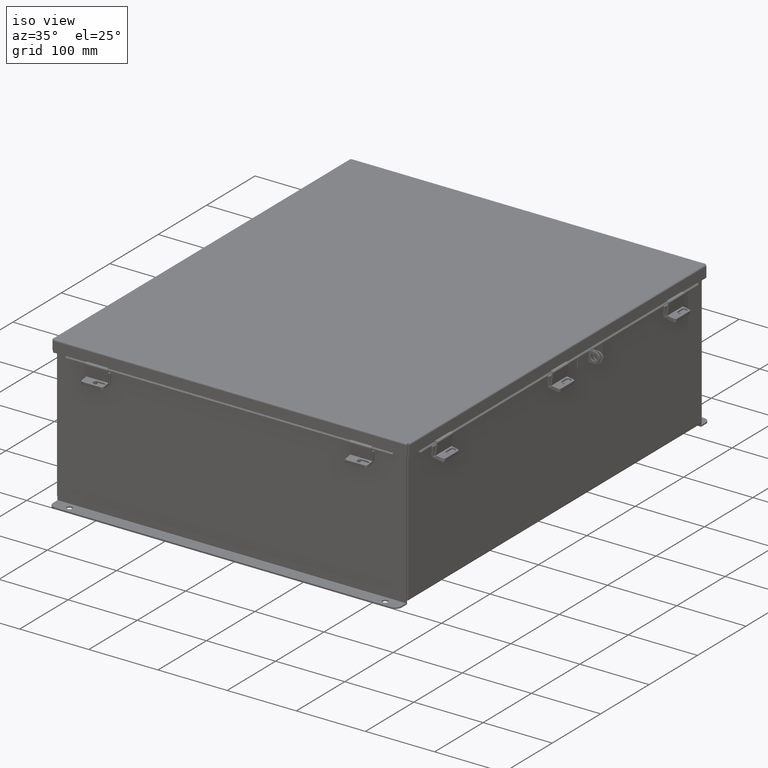
[diagram: clean part render]
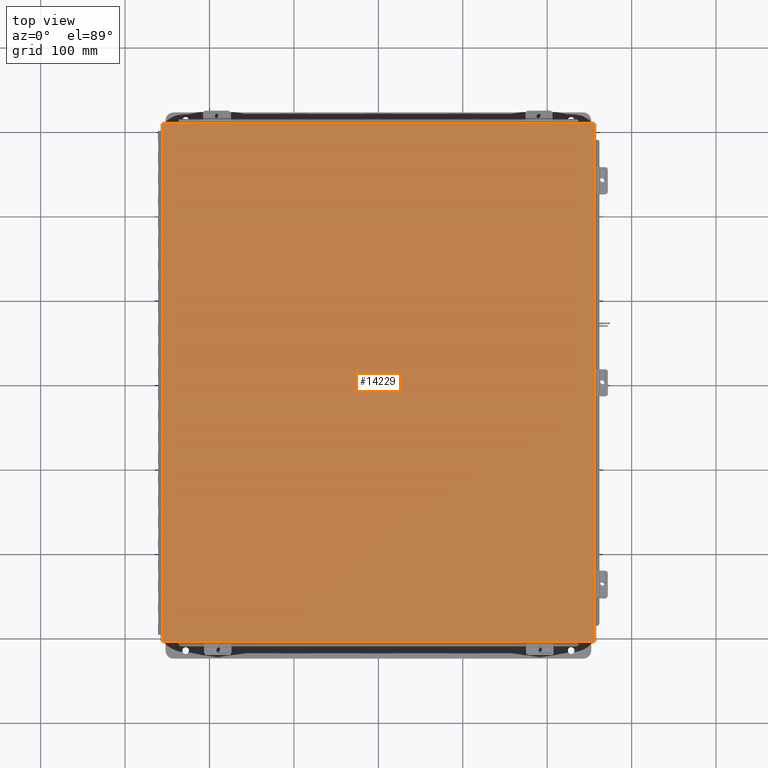
[diagram: tour spotlight — one face highlighted and labeled with its STEP entity id]
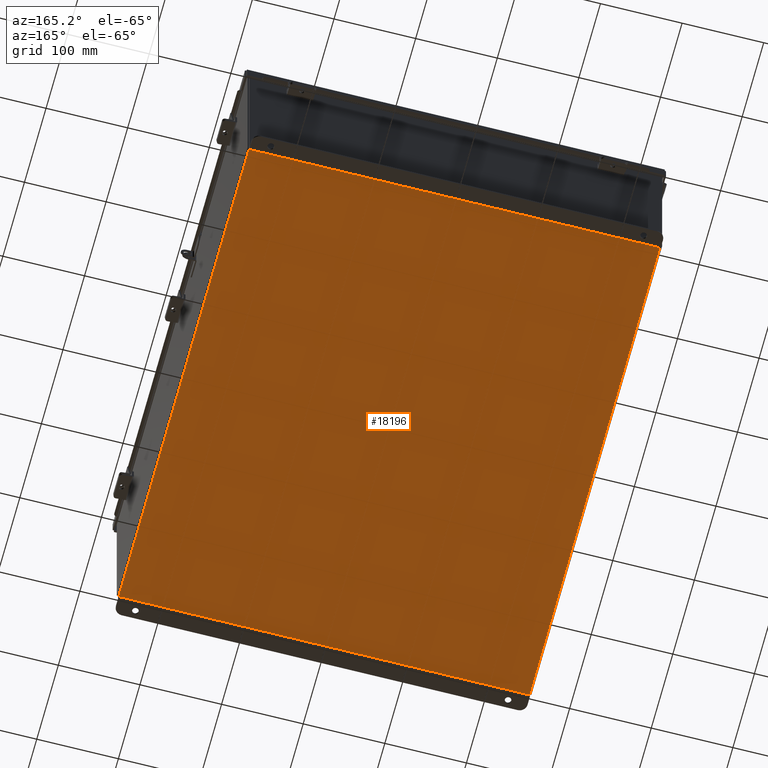
[diagram: tour spotlight — one face highlighted and labeled with its STEP entity id]
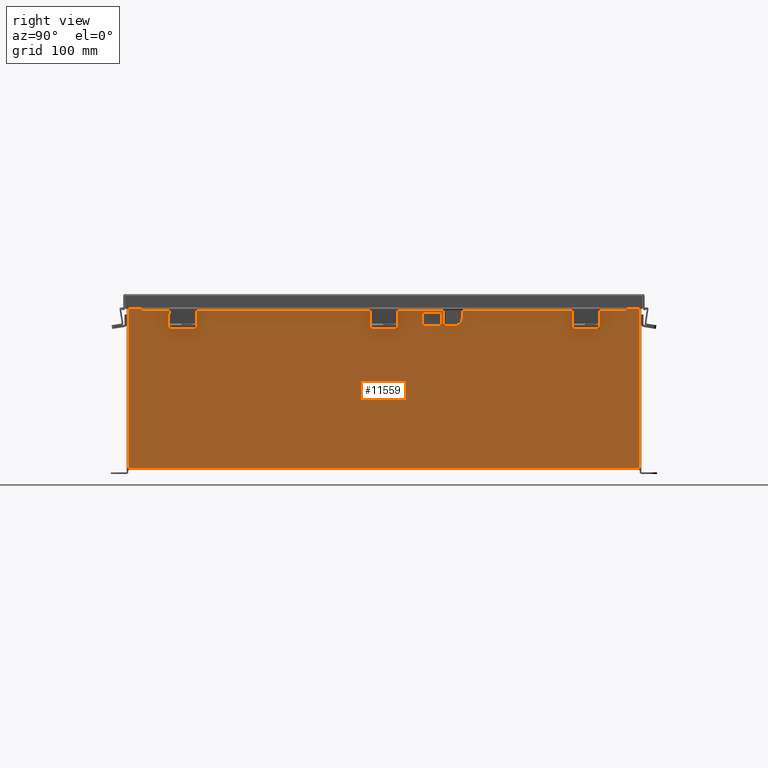
[diagram: tour spotlight — one face highlighted and labeled with its STEP entity id]
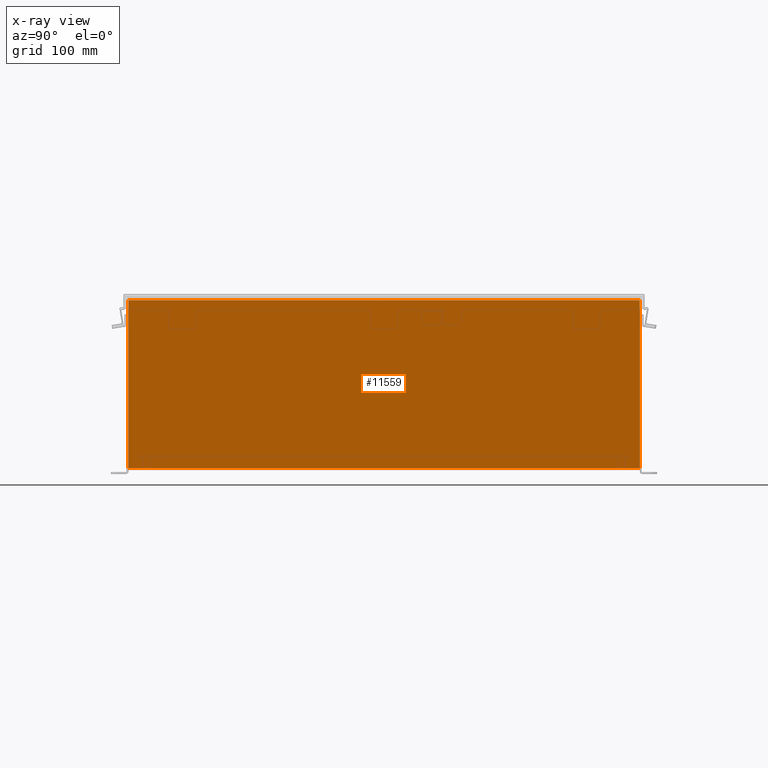
[diagram: x-ray of the same camera — body ghosted, this tour face saturated]
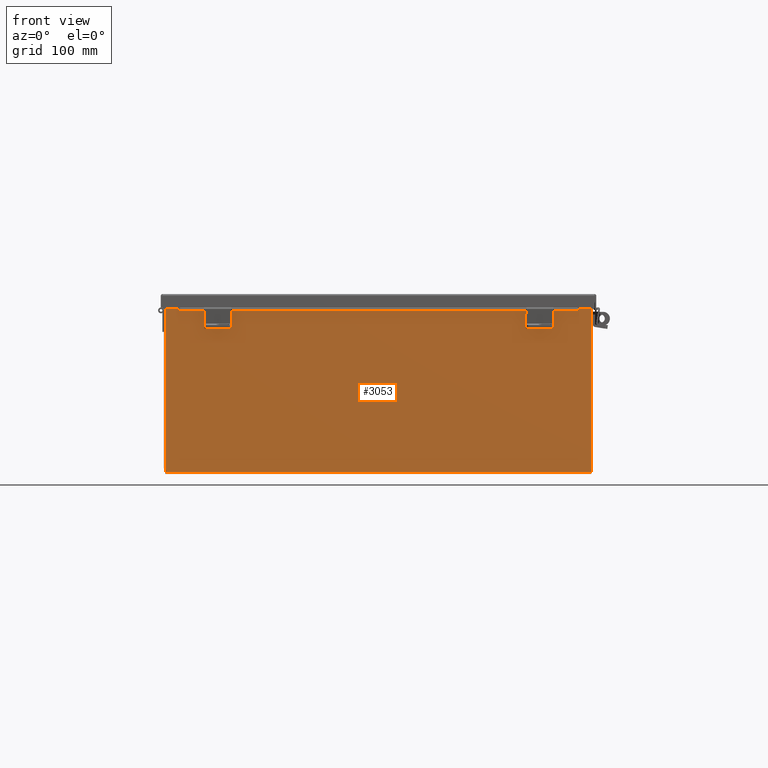
[diagram: tour spotlight — one face highlighted and labeled with its STEP entity id]
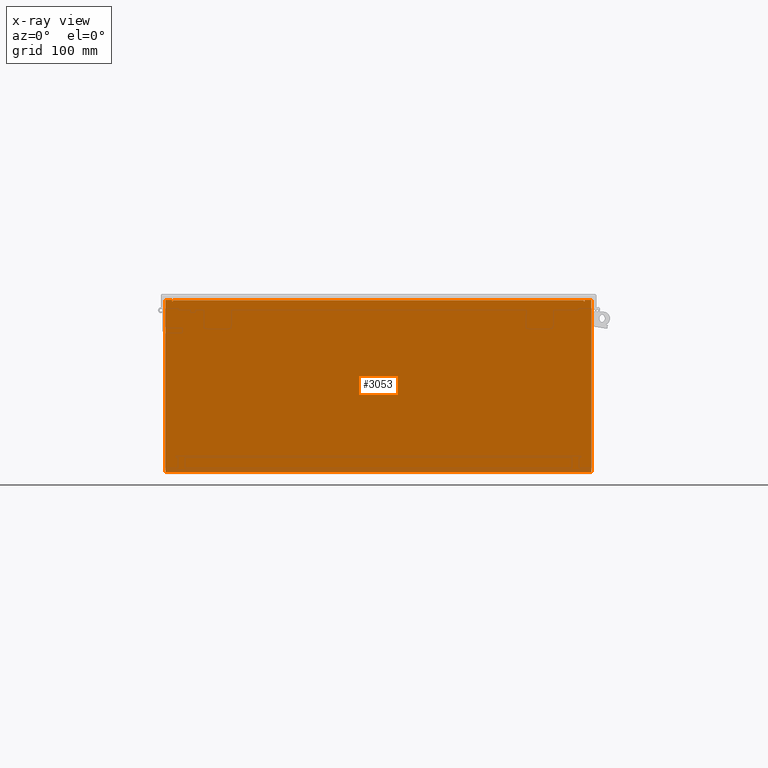
[diagram: x-ray of the same camera — body ghosted, this tour face saturated]
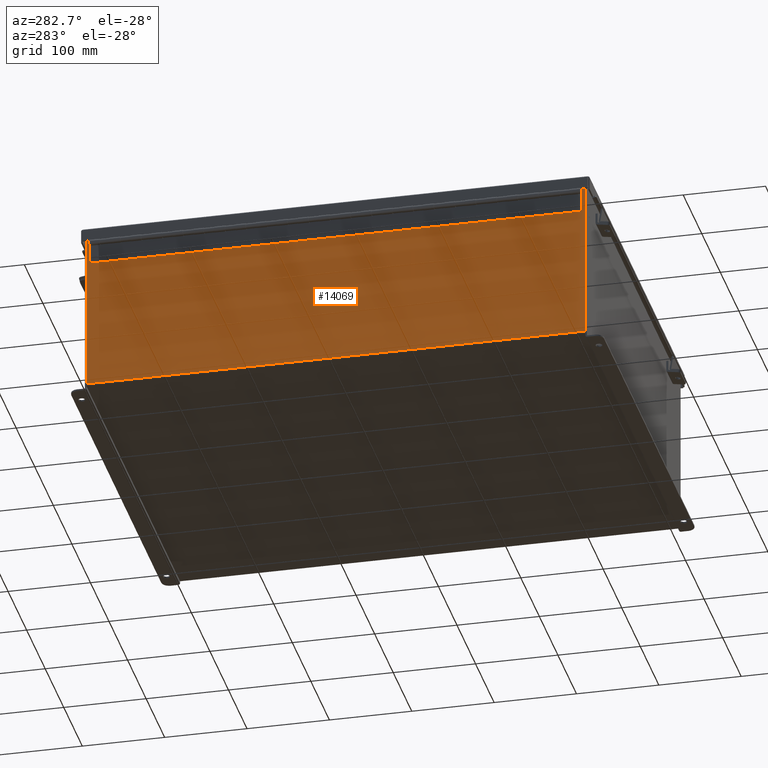
[diagram: tour spotlight — one face highlighted and labeled with its STEP entity id]
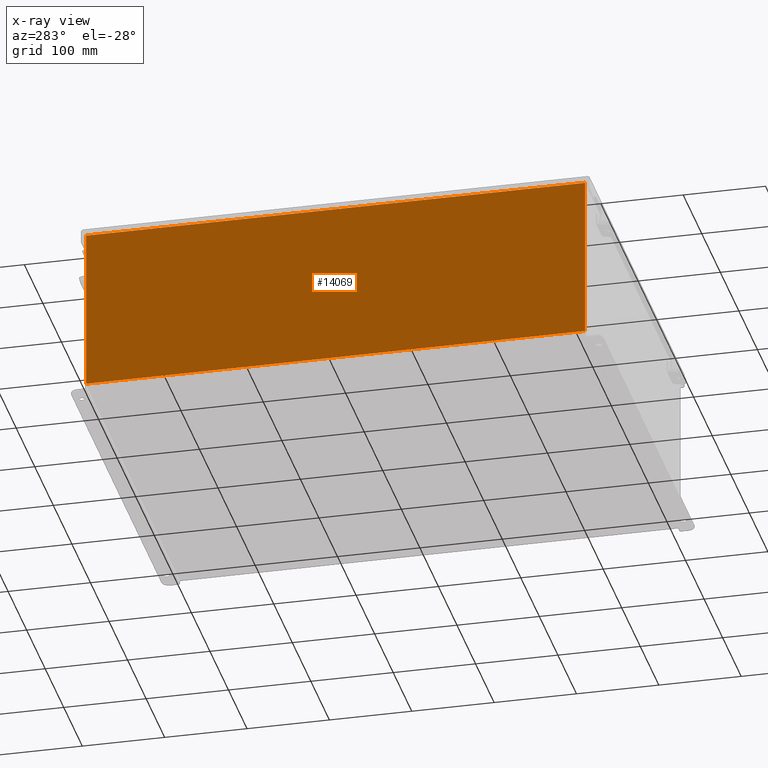
[diagram: x-ray of the same camera — body ghosted, this tour face saturated]
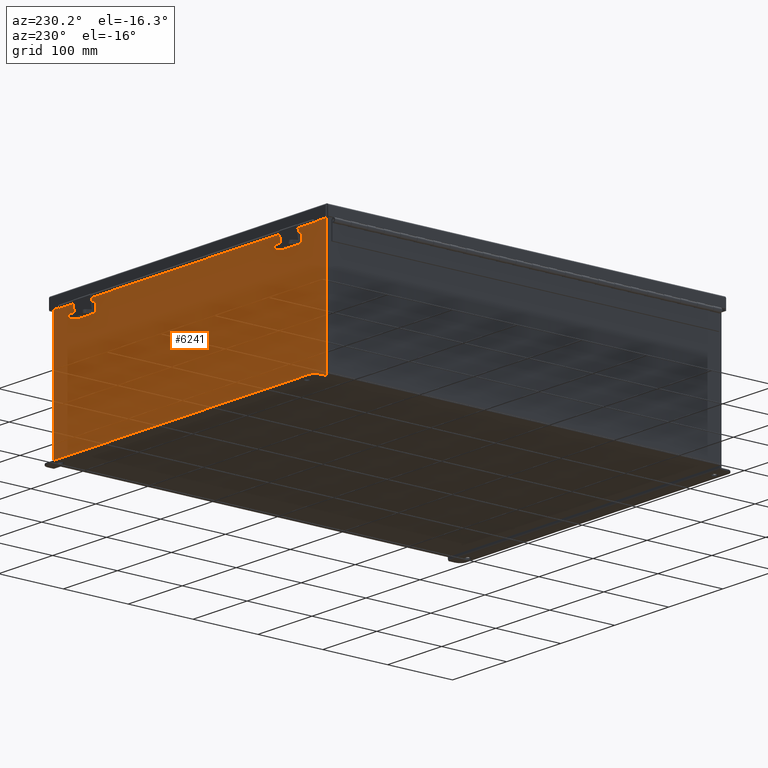
[diagram: tour spotlight — one face highlighted and labeled with its STEP entity id]
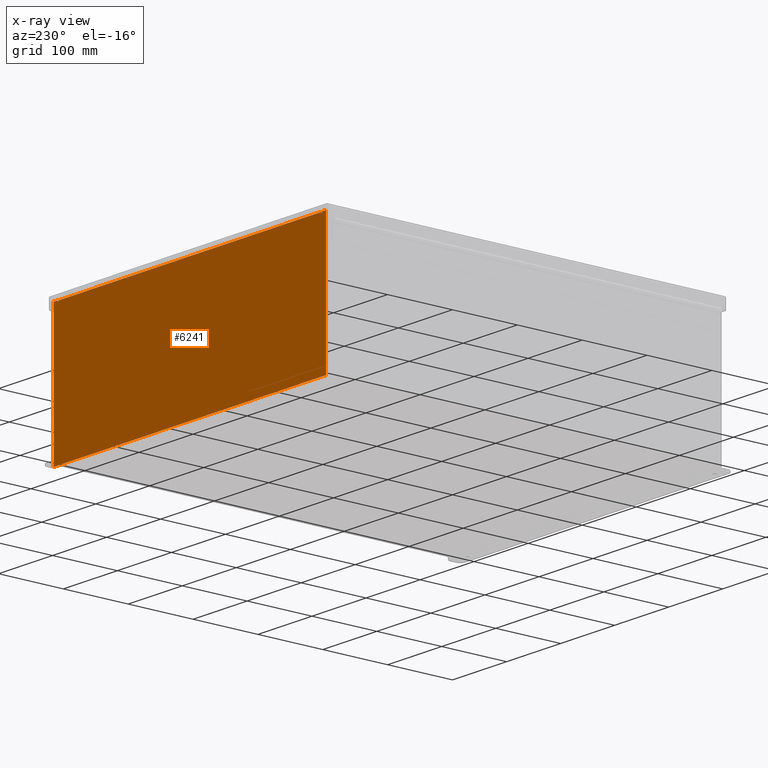
[diagram: x-ray of the same camera — body ghosted, this tour face saturated]
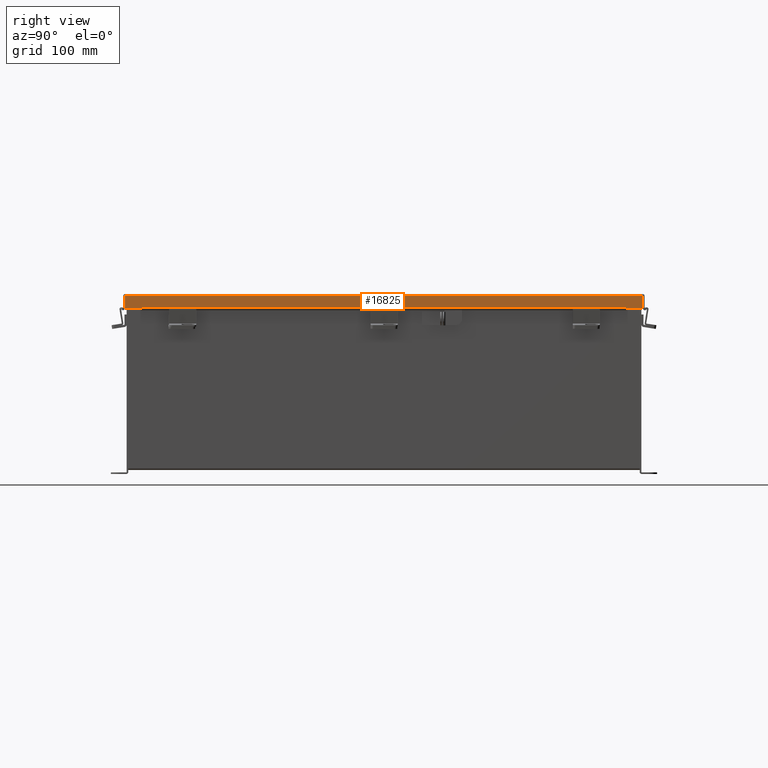
[diagram: tour spotlight — one face highlighted and labeled with its STEP entity id]
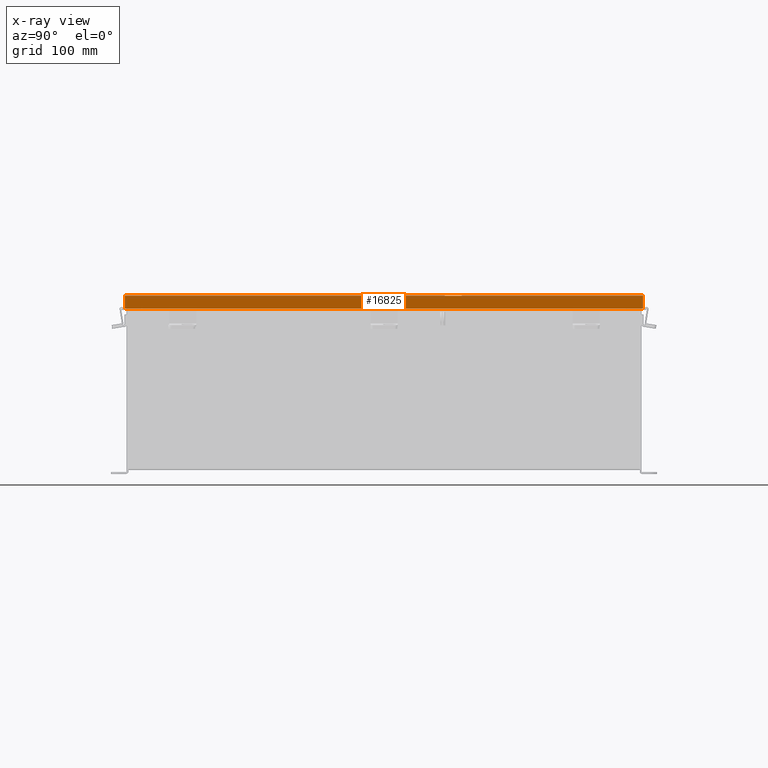
[diagram: x-ray of the same camera — body ghosted, this tour face saturated]
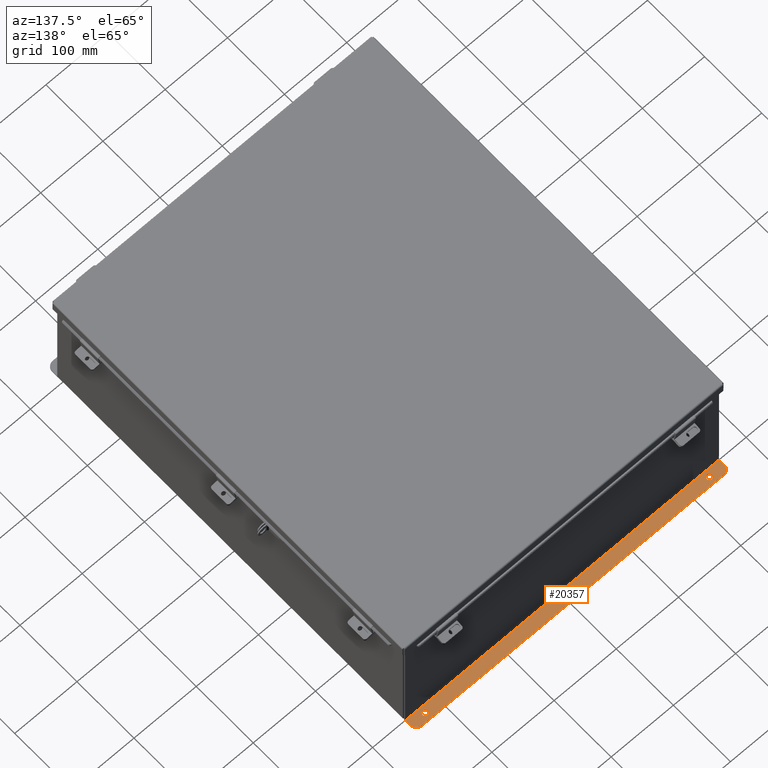
[diagram: tour spotlight — one face highlighted and labeled with its STEP entity id]
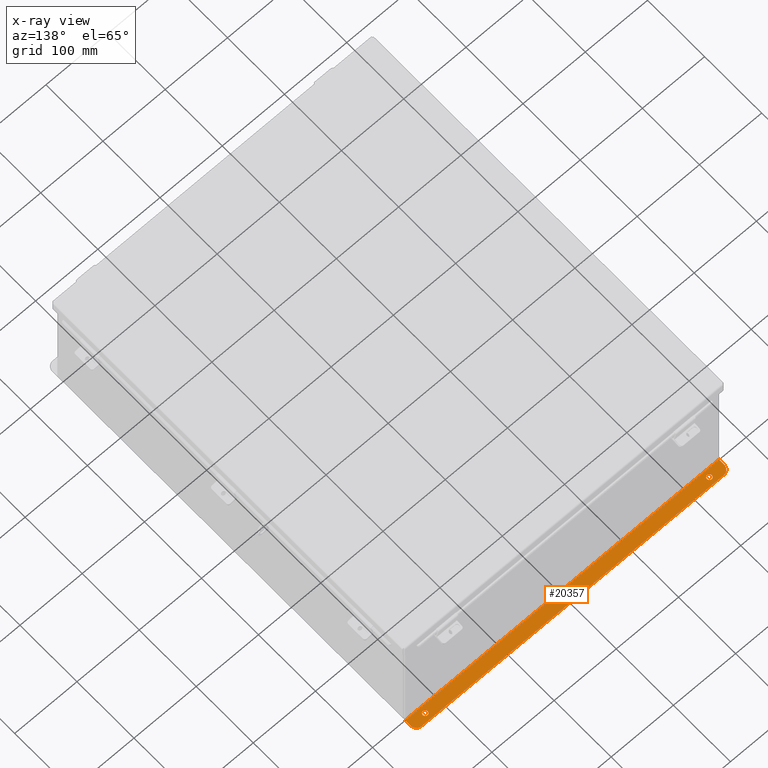
[diagram: x-ray of the same camera — body ghosted, this tour face saturated]
A machine part: a face-by-face anatomy tour. The part has 1056 B-rep faces; the first image is the clean iso view, then the 8 largest visible faces are spotlighted one at a time (largest first), each with its STEP entity span.

Face 1 — top view, entity #14229. In plain terms, the highlighted planar face has unit normal (-0, -0, 1).
Definition (entity closure, byte-faithful):
#380 = FACE_OUTER_BOUND ( 'NONE', #8643, .T. ) ;
#529 = DIRECTION ( 'NONE',  ( -1.000000000000000000, -3.215975411700707400E-030, 0.0000000000000000000 ) ) ;
#1119 = DIRECTION ( 'NONE',  ( -1.000000000000000000, -3.208594708412919900E-030, -2.462603359672870600E-016 ) ) ;
#2051 = CARTESIAN_POINT ( 'NONE',  ( -10.06855000000003200, 12.06855000000000000, -0.07470000000000015500 ) ) ;
#2365 = CARTESIAN_POINT ( 'NONE',  ( -10.06855000000003200, -12.07447893218813200, -0.07470000000000015500 ) ) ;
#2445 = VECTOR ( 'NONE', #24499, 39.37007874015748100 ) ;
#2850 = CARTESIAN_POINT ( 'NONE',  ( 10.06855000000003600, -12.06854999999999700, -0.07469999999999797600 ) ) ;
#3077 = VECTOR ( 'NONE', #1119, 39.37007874015748100 ) ;
#3311 = ORIENTED_EDGE ( 'NONE', *, *, #3914, .T. ) ;
#3914 = EDGE_CURVE ( 'NONE', #18532, #6494, #20136, .T. ) ;
#4312 = ORIENTED_EDGE ( 'NONE', *, *, #6081, .T. ) ;
#4843 = VECTOR ( 'NONE', #6283, 39.37007874015748100 ) ;
#5440 = LINE ( 'NONE', #23477, #4843 ) ;
#5468 = VECTOR ( 'NONE', #12261, 39.37007874015748100 ) ;
#6081 = EDGE_CURVE ( 'NONE', #8926, #24625, #5440, .T. ) ;
#6248 = EDGE_CURVE ( 'NONE', #24625, #18532, #12024, .T. ) ;
#6283 = DIRECTION ( 'NONE',  ( -3.166671605124525800E-030, -1.000000000000000000, -1.853823127269377700E-029 ) ) ;
#6494 = VERTEX_POINT ( 'NONE', #2051 ) ;
#7138 = CARTESIAN_POINT ( 'NONE',  ( 10.06855000000003600, 12.06854999999999700, -0.07470000000000015500 ) ) ;
#8467 = EDGE_CURVE ( 'NONE', #6494, #8926, #17653, .T. ) ;
#8643 = EDGE_LOOP ( 'NONE', ( #22124, #4312, #22830, #3311 ) ) ;
#8926 = VERTEX_POINT ( 'NONE', #7138 ) ;
#11973 = DIRECTION ( 'NONE',  ( 5.938065620492508100E-059, -1.846427556282924300E-029, -1.000000000000000000 ) ) ;
#12024 = LINE ( 'NONE', #14491, #3077 ) ;
#12261 = DIRECTION ( 'NONE',  ( 3.166671605124525800E-030, 1.000000000000000000, 1.853823127269377700E-029 ) ) ;
#14047 = CARTESIAN_POINT ( 'NONE',  ( -10.06855000000003200, -12.06855000000000000, -0.07470000000000015500 ) ) ;
#14229 = ADVANCED_FACE ( 'NONE', ( #380 ), #19583, .T. ) ;
#14491 = CARTESIAN_POINT ( 'NONE',  ( 10.07447893218817100, -12.06854999999999700, -0.07469999999999797600 ) ) ;
#14940 = CARTESIAN_POINT ( 'NONE',  ( -10.07447893218816600, 12.06855000000000000, -0.07470000000000015500 ) ) ;
#17644 = AXIS2_PLACEMENT_3D ( 'NONE', #23466, #11973, #529 ) ;
#17653 = LINE ( 'NONE', #14940, #2445 ) ;
#18532 = VERTEX_POINT ( 'NONE', #14047 ) ;
#19583 = PLANE ( 'NONE',  #17644 ) ;
#20136 = LINE ( 'NONE', #2365, #5468 ) ;
#22124 = ORIENTED_EDGE ( 'NONE', *, *, #8467, .T. ) ;
#22830 = ORIENTED_EDGE ( 'NONE', *, *, #6248, .T. ) ;
#23466 = CARTESIAN_POINT ( 'NONE',  ( -8.537024980200822600E-018, 0.0000000000000000000, -0.07470000000000015500 ) ) ;
#23477 = CARTESIAN_POINT ( 'NONE',  ( 10.06855000000003600, 12.07447893218813200, -0.07470000000000015500 ) ) ;
#24499 = DIRECTION ( 'NONE',  ( 1.000000000000000000, 3.215975411700707400E-030, -0.0000000000000000000 ) ) ;
#24625 = VERTEX_POINT ( 'NONE', #2850 ) ;

Face 2 — auxiliary view, entity #18196. In plain terms, the highlighted planar face has unit normal (0, 0, -1).
Definition (entity closure, byte-faithful):
#786 = CARTESIAN_POINT ( 'NONE',  ( 9.912300000000000100, -11.92530000000000000, -0.07470000000000000300 ) ) ;
#1447 = DIRECTION ( 'NONE',  ( 0.0000000000000000000, 0.0000000000000000000, -1.000000000000000000 ) ) ;
#2251 = EDGE_CURVE ( 'NONE', #13148, #17341, #20529, .T. ) ;
#3740 = EDGE_LOOP ( 'NONE', ( #16899, #15521, #13190, #12288 ) ) ;
#3967 = CARTESIAN_POINT ( 'NONE',  ( -9.912300000000000100, -11.92530000000000000, -0.07469999999999994700 ) ) ;
#4499 = CARTESIAN_POINT ( 'NONE',  ( -9.912300000000000100, -11.92529999999999600, -0.07469999999999994700 ) ) ;
#4651 = CARTESIAN_POINT ( 'NONE',  ( -9.912300000000000100, 11.92529999999999600, -0.07470000000000000300 ) ) ;
#5215 = CARTESIAN_POINT ( 'NONE',  ( 0.0000000000000000000, 0.0000000000000000000, -0.07470000000000000300 ) ) ;
#6361 = DIRECTION ( 'NONE',  ( -0.0000000000000000000, -1.000000000000000000, -0.0000000000000000000 ) ) ;
#9189 = VECTOR ( 'NONE', #6361, 39.37007874015748100 ) ;
#9278 = DIRECTION ( 'NONE',  ( -1.000000000000000000, -0.0000000000000000000, -0.0000000000000000000 ) ) ;
#9739 = VECTOR ( 'NONE', #24292, 39.37007874015748100 ) ;
#9798 = LINE ( 'NONE', #19746, #9189 ) ;
#9872 = LINE ( 'NONE', #20760, #20048 ) ;
#12288 = ORIENTED_EDGE ( 'NONE', *, *, #2251, .T. ) ;
#12895 = PLANE ( 'NONE',  #15342 ) ;
#13148 = VERTEX_POINT ( 'NONE', #4499 ) ;
#13190 = ORIENTED_EDGE ( 'NONE', *, *, #23046, .F. ) ;
#14608 = EDGE_CURVE ( 'NONE', #21763, #17341, #9872, .T. ) ;
#14826 = DIRECTION ( 'NONE',  ( -1.000000000000000000, 0.0000000000000000000, -0.0000000000000000000 ) ) ;
#15082 = FACE_OUTER_BOUND ( 'NONE', #3740, .T. ) ;
#15342 = AXIS2_PLACEMENT_3D ( 'NONE', #5215, #1447, #14826 ) ;
#15521 = ORIENTED_EDGE ( 'NONE', *, *, #16055, .T. ) ;
#15811 = CARTESIAN_POINT ( 'NONE',  ( 9.912300000000000100, 11.92529999999999300, -0.07469999999999994700 ) ) ;
#15833 = DIRECTION ( 'NONE',  ( 1.000000000000000000, 0.0000000000000000000, 0.0000000000000000000 ) ) ;
#16055 = EDGE_CURVE ( 'NONE', #21763, #16104, #9798, .T. ) ;
#16104 = VERTEX_POINT ( 'NONE', #786 ) ;
#16899 = ORIENTED_EDGE ( 'NONE', *, *, #14608, .F. ) ;
#17341 = VERTEX_POINT ( 'NONE', #4651 ) ;
#17522 = LINE ( 'NONE', #23492, #22020 ) ;
#18196 = ADVANCED_FACE ( 'NONE', ( #15082 ), #12895, .T. ) ;
#19746 = CARTESIAN_POINT ( 'NONE',  ( 9.912300000000000100, 11.92529999999999600, -0.07469999999999994700 ) ) ;
#20048 = VECTOR ( 'NONE', #9278, 39.37007874015748100 ) ;
#20529 = LINE ( 'NONE', #3967, #9739 ) ;
#20760 = CARTESIAN_POINT ( 'NONE',  ( -10.00000000000000000, 11.92529999999999600, -0.07470000000000000300 ) ) ;
#21763 = VERTEX_POINT ( 'NONE', #15811 ) ;
#22020 = VECTOR ( 'NONE', #15833, 39.37007874015748100 ) ;
#23046 = EDGE_CURVE ( 'NONE', #13148, #16104, #17522, .T. ) ;
#23492 = CARTESIAN_POINT ( 'NONE',  ( -10.00000000000000000, -11.92530000000000000, -0.07470000000000000300 ) ) ;
#24292 = DIRECTION ( 'NONE',  ( -0.0000000000000000000, 1.000000000000000000, -0.0000000000000000000 ) ) ;

Face 3 — right view, entity #11559. An x-ray twin of the same camera follows (body ghosted, this face saturated) — the face is partly hidden behind the body. In plain terms, the highlighted planar face has unit normal (-1, 0, 0).
Definition (entity closure, byte-faithful):
#1032 = DIRECTION ( 'NONE',  ( 3.618986973493534200E-015, -2.783836133456565100E-016, 1.000000000000000000 ) ) ;
#1385 = CARTESIAN_POINT ( 'NONE',  ( 10.00000000000000000, -11.92530000000000000, 0.01299999999999984300 ) ) ;
#1406 = PLANE ( 'NONE',  #4025 ) ;
#2265 = CARTESIAN_POINT ( 'NONE',  ( 10.00000000000002700, 11.92529999999998900, 7.837599999999999200 ) ) ;
#2577 = EDGE_CURVE ( 'NONE', #9735, #22712, #2588, .T. ) ;
#2588 = LINE ( 'NONE', #14051, #7607 ) ;
#2788 = ORIENTED_EDGE ( 'NONE', *, *, #6442, .F. ) ;
#3707 = LINE ( 'NONE', #22490, #23450 ) ;
#3974 = EDGE_CURVE ( 'NONE', #22712, #15623, #3707, .T. ) ;
#4025 = AXIS2_PLACEMENT_3D ( 'NONE', #12856, #5254, #18627 ) ;
#5254 = DIRECTION ( 'NONE',  ( -1.000000000000000000, 0.0000000000000000000, 3.618986973493534200E-015 ) ) ;
#5411 = CARTESIAN_POINT ( 'NONE',  ( 10.00000000000002800, -11.92530000000000000, 7.837599999999999200 ) ) ;
#5684 = DIRECTION ( 'NONE',  ( -0.0000000000000000000, -1.000000000000000000, -0.0000000000000000000 ) ) ;
#6442 = EDGE_CURVE ( 'NONE', #19516, #15623, #17991, .T. ) ;
#6777 = LINE ( 'NONE', #16226, #16354 ) ;
#7201 = VECTOR ( 'NONE', #5684, 39.37007874015748100 ) ;
#7607 = VECTOR ( 'NONE', #15792, 39.37007874015748100 ) ;
#9444 = CARTESIAN_POINT ( 'NONE',  ( 10.00000000000000000, -11.92530000000000000, 0.01299999999999982600 ) ) ;
#9735 = VERTEX_POINT ( 'NONE', #2265 ) ;
#10056 = ORIENTED_EDGE ( 'NONE', *, *, #2577, .T. ) ;
#11559 = ADVANCED_FACE ( 'NONE', ( #19940 ), #1406, .F. ) ;
#12856 = CARTESIAN_POINT ( 'NONE',  ( 10.00000000000000000, 0.0000000000000000000, -3.645309666545751000E-014 ) ) ;
#14051 = CARTESIAN_POINT ( 'NONE',  ( 10.00000000000002700, 11.92529999999999300, 7.837599999999999200 ) ) ;
#15623 = VERTEX_POINT ( 'NONE', #1385 ) ;
#15792 = DIRECTION ( 'NONE',  ( -0.0000000000000000000, -1.000000000000000000, -0.0000000000000000000 ) ) ;
#16203 = EDGE_CURVE ( 'NONE', #19516, #9735, #6777, .T. ) ;
#16226 = CARTESIAN_POINT ( 'NONE',  ( 10.00000000000000000, 11.92529999999999600, -3.313219394815939000E-014 ) ) ;
#16354 = VECTOR ( 'NONE', #1032, 39.37007874015748100 ) ;
#17991 = LINE ( 'NONE', #9444, #7201 ) ;
#18627 = DIRECTION ( 'NONE',  ( 3.618986973493534200E-015, 0.0000000000000000000, 1.000000000000000000 ) ) ;
#19516 = VERTEX_POINT ( 'NONE', #24655 ) ;
#19940 = FACE_OUTER_BOUND ( 'NONE', #24638, .T. ) ;
#20668 = ORIENTED_EDGE ( 'NONE', *, *, #16203, .T. ) ;
#21445 = ORIENTED_EDGE ( 'NONE', *, *, #3974, .T. ) ;
#21898 = DIRECTION ( 'NONE',  ( -3.618986973493534200E-015, 0.0000000000000000000, -1.000000000000000000 ) ) ;
#22490 = CARTESIAN_POINT ( 'NONE',  ( 10.00000000000000000, -11.92530000000000000, -3.645309666545751000E-014 ) ) ;
#22712 = VERTEX_POINT ( 'NONE', #5411 ) ;
#23450 = VECTOR ( 'NONE', #21898, 39.37007874015748100 ) ;
#24638 = EDGE_LOOP ( 'NONE', ( #10056, #21445, #2788, #20668 ) ) ;
#24655 = CARTESIAN_POINT ( 'NONE',  ( 10.00000000000000000, 11.92529999999999300, 0.01299999999999982600 ) ) ;

Face 4 — front view, entity #3053. An x-ray twin of the same camera follows (body ghosted, this face saturated) — the face is partly hidden behind the body. In plain terms, the highlighted planar face has unit normal (-0, 1, -0).
Definition (entity closure, byte-faithful):
#11 = ORIENTED_EDGE ( 'NONE', *, *, #8930, .F. ) ;
#141 = CARTESIAN_POINT ( 'NONE',  ( 0.0000000000000000000, 0.0000000000000000000, 0.0000000000000000000 ) ) ;
#284 = CARTESIAN_POINT ( 'NONE',  ( 9.925299999999998200, 1.748382715945128500E-014, -4.099299999999995100 ) ) ;
#457 = LINE ( 'NONE', #24729, #10021 ) ;
#1046 = CARTESIAN_POINT ( 'NONE',  ( 9.582300000000001800, 0.0000000000000000000, 3.912299999999997900 ) ) ;
#1208 = AXIS2_PLACEMENT_3D ( 'NONE', #141, #13601, #1724 ) ;
#1379 = VECTOR ( 'NONE', #1781, 39.37007874015748100 ) ;
#1466 = VERTEX_POINT ( 'NONE', #5467 ) ;
#1724 = DIRECTION ( 'NONE',  ( 0.0000000000000000000, 0.0000000000000000000, -1.000000000000000000 ) ) ;
#1759 = VERTEX_POINT ( 'NONE', #14044 ) ;
#1781 = DIRECTION ( 'NONE',  ( 0.0000000000000000000, 0.0000000000000000000, 1.000000000000000000 ) ) ;
#1826 = CARTESIAN_POINT ( 'NONE',  ( 9.619649999999833100, 0.0000000000000000000, -4.136017862407694300E-013 ) ) ;
#1829 = VERTEX_POINT ( 'NONE', #15379 ) ;
#2154 = EDGE_CURVE ( 'NONE', #3882, #3103, #16602, .T. ) ;
#2327 = EDGE_CURVE ( 'NONE', #15539, #1466, #2889, .T. ) ;
#2446 = DIRECTION ( 'NONE',  ( 4.910036603141682400E-031, 1.000000000000000000, -0.0000000000000000000 ) ) ;
#2687 = CARTESIAN_POINT ( 'NONE',  ( -9.582299999999998300, -1.748382715945128500E-014, 3.874949999999999200 ) ) ;
#2689 = CARTESIAN_POINT ( 'NONE',  ( 9.925300000000000000, 0.0000000000000000000, 3.925300000000000500 ) ) ;
#2889 = LINE ( 'NONE', #1826, #3488 ) ;
#2956 = DIRECTION ( 'NONE',  ( 0.0000000000000000000, 0.0000000000000000000, 1.000000000000000000 ) ) ;
#3053 = ADVANCED_FACE ( 'NONE', ( #12690 ), #10413, .F. ) ;
#3103 = VERTEX_POINT ( 'NONE', #7301 ) ;
#3427 = DIRECTION ( 'NONE',  ( 4.910036603141682400E-031, 1.000000000000000000, -0.0000000000000000000 ) ) ;
#3488 = VECTOR ( 'NONE', #9476, 39.37007874015748100 ) ;
#3781 = EDGE_CURVE ( 'NONE', #5102, #23599, #23761, .T. ) ;
#3882 = VERTEX_POINT ( 'NONE', #21705 ) ;
#4224 = CARTESIAN_POINT ( 'NONE',  ( -9.925299999999998200, -2.185478394931410600E-015, -4.099299999999999500 ) ) ;
#4701 = LINE ( 'NONE', #4224, #11587 ) ;
#5042 = ORIENTED_EDGE ( 'NONE', *, *, #24636, .F. ) ;
#5102 = VERTEX_POINT ( 'NONE', #14700 ) ;
#5423 = ORIENTED_EDGE ( 'NONE', *, *, #10339, .F. ) ;
#5467 = CARTESIAN_POINT ( 'NONE',  ( 9.619650000000001800, 0.0000000000000000000, 3.874949999999997900 ) ) ;
#6667 = CIRCLE ( 'NONE', #18654, 0.01867500000000003900 ) ;
#7301 = CARTESIAN_POINT ( 'NONE',  ( -9.925299999999998200, -1.748382715945128500E-014, 3.925299999999999100 ) ) ;
#7710 = ORIENTED_EDGE ( 'NONE', *, *, #20461, .F. ) ;
#8111 = ORIENTED_EDGE ( 'NONE', *, *, #24494, .F. ) ;
#8149 = LINE ( 'NONE', #18111, #22871 ) ;
#8662 = ORIENTED_EDGE ( 'NONE', *, *, #17683, .T. ) ;
#8930 = EDGE_CURVE ( 'NONE', #13566, #1759, #23358, .T. ) ;
#8987 = VERTEX_POINT ( 'NONE', #20710 ) ;
#9476 = DIRECTION ( 'NONE',  ( -4.340572780399863600E-014, 0.0000000000000000000, -1.000000000000000000 ) ) ;
#9940 = LINE ( 'NONE', #23930, #19507 ) ;
#10021 = VECTOR ( 'NONE', #11317, 39.37007874015748100 ) ;
#10339 = EDGE_CURVE ( 'NONE', #3882, #23599, #4701, .T. ) ;
#10413 = PLANE ( 'NONE',  #1208 ) ;
#10508 = ORIENTED_EDGE ( 'NONE', *, *, #2154, .T. ) ;
#11204 = LINE ( 'NONE', #15322, #15691 ) ;
#11317 = DIRECTION ( 'NONE',  ( 1.000000000000000000, 4.910036603141682400E-031, 0.0000000000000000000 ) ) ;
#11587 = VECTOR ( 'NONE', #17564, 39.37007874015748100 ) ;
#12040 = EDGE_CURVE ( 'NONE', #8987, #13566, #24434, .T. ) ;
#12690 = FACE_OUTER_BOUND ( 'NONE', #14698, .T. ) ;
#13143 = ORIENTED_EDGE ( 'NONE', *, *, #12040, .F. ) ;
#13471 = CARTESIAN_POINT ( 'NONE',  ( 9.619650000000003600, 0.0000000000000000000, 3.925299999999999100 ) ) ;
#13521 = EDGE_CURVE ( 'NONE', #8987, #23727, #19856, .T. ) ;
#13566 = VERTEX_POINT ( 'NONE', #2687 ) ;
#13601 = DIRECTION ( 'NONE',  ( -4.910036603141682400E-031, -1.000000000000000000, -0.0000000000000000000 ) ) ;
#13778 = DIRECTION ( 'NONE',  ( 1.000000000000000000, 4.910036603141682400E-031, -0.0000000000000000000 ) ) ;
#13867 = CARTESIAN_POINT ( 'NONE',  ( 9.600975000000000000, 0.0000000000000000000, 3.874949999999997900 ) ) ;
#14044 = CARTESIAN_POINT ( 'NONE',  ( -9.619649999999996500, -1.748382715945128500E-014, 3.874949999999997900 ) ) ;
#14698 = EDGE_LOOP ( 'NONE', ( #5042, #11, #13143, #16643, #7710, #8111, #19397, #15711, #15674, #5423, #10508, #8662 ) ) ;
#14700 = CARTESIAN_POINT ( 'NONE',  ( 9.925300000000000000, 0.0000000000000000000, 3.925300000000000500 ) ) ;
#14842 = VECTOR ( 'NONE', #20404, 39.37007874015748100 ) ;
#14857 = CARTESIAN_POINT ( 'NONE',  ( -9.600974999999998300, -1.748382715945128500E-014, 3.874949999999997900 ) ) ;
#15039 = CARTESIAN_POINT ( 'NONE',  ( 9.582300000000000000, 0.0000000000000000000, 3.874949999999999200 ) ) ;
#15322 = CARTESIAN_POINT ( 'NONE',  ( -9.925299999999998200, -1.748382715945128500E-014, 3.925299999999999100 ) ) ;
#15379 = CARTESIAN_POINT ( 'NONE',  ( -9.619649999999998300, -1.748382715945128500E-014, 3.925300000000000500 ) ) ;
#15539 = VERTEX_POINT ( 'NONE', #13471 ) ;
#15674 = ORIENTED_EDGE ( 'NONE', *, *, #3781, .T. ) ;
#15691 = VECTOR ( 'NONE', #17326, 39.37007874015748100 ) ;
#15711 = ORIENTED_EDGE ( 'NONE', *, *, #23542, .T. ) ;
#15757 = DIRECTION ( 'NONE',  ( 0.0000000000000000000, 0.0000000000000000000, -1.000000000000000000 ) ) ;
#16534 = CARTESIAN_POINT ( 'NONE',  ( -9.582299999999998300, 0.0000000000000000000, 4.370956789862821100E-015 ) ) ;
#16602 = LINE ( 'NONE', #22359, #1379 ) ;
#16643 = ORIENTED_EDGE ( 'NONE', *, *, #13521, .T. ) ;
#16750 = DIRECTION ( 'NONE',  ( 0.0000000000000000000, 0.0000000000000000000, -1.000000000000000000 ) ) ;
#17326 = DIRECTION ( 'NONE',  ( 1.000000000000000000, 4.910036603141682400E-031, 0.0000000000000000000 ) ) ;
#17564 = DIRECTION ( 'NONE',  ( 1.000000000000000000, 8.208677865577687000E-017, -0.0000000000000000000 ) ) ;
#17683 = EDGE_CURVE ( 'NONE', #3103, #1829, #457, .T. ) ;
#18048 = VECTOR ( 'NONE', #19467, 39.37007874015748100 ) ;
#18111 = CARTESIAN_POINT ( 'NONE',  ( -9.619649999999998300, 0.0000000000000000000, 0.0000000000000000000 ) ) ;
#18654 = AXIS2_PLACEMENT_3D ( 'NONE', #13867, #2446, #15757 ) ;
#19397 = ORIENTED_EDGE ( 'NONE', *, *, #2327, .F. ) ;
#19467 = DIRECTION ( 'NONE',  ( -2.783836133456566600E-016, 0.0000000000000000000, -1.000000000000000000 ) ) ;
#19490 = AXIS2_PLACEMENT_3D ( 'NONE', #14857, #3427, #16750 ) ;
#19507 = VECTOR ( 'NONE', #2956, 39.37007874015748100 ) ;
#19611 = CARTESIAN_POINT ( 'NONE',  ( -9.582299999999998300, -1.311287036958846300E-014, 3.912299999999997900 ) ) ;
#19856 = LINE ( 'NONE', #19611, #24365 ) ;
#19952 = DIRECTION ( 'NONE',  ( 0.0000000000000000000, 0.0000000000000000000, 1.000000000000000000 ) ) ;
#20404 = DIRECTION ( 'NONE',  ( 0.0000000000000000000, 0.0000000000000000000, -1.000000000000000000 ) ) ;
#20461 = EDGE_CURVE ( 'NONE', #20663, #23727, #9940, .T. ) ;
#20663 = VERTEX_POINT ( 'NONE', #15039 ) ;
#20710 = CARTESIAN_POINT ( 'NONE',  ( -9.582299999999998300, -1.311287036958846300E-014, 3.912299999999997900 ) ) ;
#21705 = CARTESIAN_POINT ( 'NONE',  ( -9.925299999999996500, -2.185478394931410600E-015, -4.099299999999999500 ) ) ;
#22359 = CARTESIAN_POINT ( 'NONE',  ( -9.925299999999998200, -1.748382715945128500E-014, 3.925299999999999100 ) ) ;
#22871 = VECTOR ( 'NONE', #19952, 39.37007874015748100 ) ;
#23358 = CIRCLE ( 'NONE', #19490, 0.01867500000000003900 ) ;
#23542 = EDGE_CURVE ( 'NONE', #15539, #5102, #11204, .T. ) ;
#23599 = VERTEX_POINT ( 'NONE', #284 ) ;
#23727 = VERTEX_POINT ( 'NONE', #1046 ) ;
#23761 = LINE ( 'NONE', #2689, #18048 ) ;
#23930 = CARTESIAN_POINT ( 'NONE',  ( 9.582300000000001800, 0.0000000000000000000, 0.0000000000000000000 ) ) ;
#24365 = VECTOR ( 'NONE', #13778, 39.37007874015748100 ) ;
#24434 = LINE ( 'NONE', #16534, #14842 ) ;
#24494 = EDGE_CURVE ( 'NONE', #1466, #20663, #6667, .T. ) ;
#24636 = EDGE_CURVE ( 'NONE', #1759, #1829, #8149, .T. ) ;
#24729 = CARTESIAN_POINT ( 'NONE',  ( -9.925299999999998200, -1.748382715945128500E-014, 3.925299999999999100 ) ) ;

Face 5 — auxiliary view, entity #14069. An x-ray twin of the same camera follows (body ghosted, this face saturated) — the face is partly hidden behind the body. In plain terms, the highlighted planar face has unit normal (1, 0, 0).
Definition (entity closure, byte-faithful):
#2160 = CARTESIAN_POINT ( 'NONE',  ( -10.00000000000000000, 0.0000000000000000000, -3.645309666545751000E-014 ) ) ;
#2314 = AXIS2_PLACEMENT_3D ( 'NONE', #2160, #15495, #4080 ) ;
#2776 = EDGE_LOOP ( 'NONE', ( #12796, #15432, #24715, #22155 ) ) ;
#3071 = VERTEX_POINT ( 'NONE', #4728 ) ;
#3589 = DIRECTION ( 'NONE',  ( 0.0000000000000000000, 1.000000000000000000, 0.0000000000000000000 ) ) ;
#4080 = DIRECTION ( 'NONE',  ( 3.618986973493534200E-015, 0.0000000000000000000, -1.000000000000000000 ) ) ;
#4490 = VECTOR ( 'NONE', #17414, 39.37007874015748100 ) ;
#4625 = CARTESIAN_POINT ( 'NONE',  ( -10.00000000000003000, -11.92529999999999500, 7.837599999999999200 ) ) ;
#4728 = CARTESIAN_POINT ( 'NONE',  ( -10.00000000000000000, 11.92529999999999600, 0.01299999999999984300 ) ) ;
#5987 = EDGE_CURVE ( 'NONE', #16603, #3071, #16207, .T. ) ;
#9002 = EDGE_CURVE ( 'NONE', #14316, #16616, #10729, .T. ) ;
#9402 = CARTESIAN_POINT ( 'NONE',  ( -10.00000000000000000, 11.92529999999999600, -3.645309666545751000E-014 ) ) ;
#9815 = CARTESIAN_POINT ( 'NONE',  ( -10.00000000000000000, 11.92529999999999600, 0.01299999999999982600 ) ) ;
#10729 = LINE ( 'NONE', #16908, #15820 ) ;
#11124 = VECTOR ( 'NONE', #13677, 39.37007874015748100 ) ;
#11244 = VECTOR ( 'NONE', #13276, 39.37007874015748100 ) ;
#11694 = EDGE_CURVE ( 'NONE', #16616, #3071, #12448, .T. ) ;
#12448 = LINE ( 'NONE', #9402, #11244 ) ;
#12796 = ORIENTED_EDGE ( 'NONE', *, *, #9002, .T. ) ;
#13276 = DIRECTION ( 'NONE',  ( 3.618986973493534200E-015, 0.0000000000000000000, -1.000000000000000000 ) ) ;
#13559 = FACE_OUTER_BOUND ( 'NONE', #2776, .T. ) ;
#13677 = DIRECTION ( 'NONE',  ( -0.0000000000000000000, 1.000000000000000000, -0.0000000000000000000 ) ) ;
#14069 = ADVANCED_FACE ( 'NONE', ( #13559 ), #15413, .F. ) ;
#14316 = VERTEX_POINT ( 'NONE', #4625 ) ;
#14653 = LINE ( 'NONE', #15480, #4490 ) ;
#14886 = EDGE_CURVE ( 'NONE', #16603, #14316, #14653, .T. ) ;
#15413 = PLANE ( 'NONE',  #2314 ) ;
#15432 = ORIENTED_EDGE ( 'NONE', *, *, #11694, .T. ) ;
#15480 = CARTESIAN_POINT ( 'NONE',  ( -10.00000000000000000, -11.92530000000000000, -3.313219394815939000E-014 ) ) ;
#15495 = DIRECTION ( 'NONE',  ( 1.000000000000000000, 0.0000000000000000000, 3.618986973493534200E-015 ) ) ;
#15820 = VECTOR ( 'NONE', #3589, 39.37007874015748100 ) ;
#15968 = CARTESIAN_POINT ( 'NONE',  ( -10.00000000000002800, 11.92529999999999600, 7.837599999999999200 ) ) ;
#16207 = LINE ( 'NONE', #9815, #11124 ) ;
#16603 = VERTEX_POINT ( 'NONE', #23605 ) ;
#16616 = VERTEX_POINT ( 'NONE', #15968 ) ;
#16908 = CARTESIAN_POINT ( 'NONE',  ( -10.00000000000003000, -11.92529999999999600, 7.837599999999999200 ) ) ;
#17414 = DIRECTION ( 'NONE',  ( -3.618986973493534200E-015, 2.783836133456565100E-016, 1.000000000000000000 ) ) ;
#22155 = ORIENTED_EDGE ( 'NONE', *, *, #14886, .T. ) ;
#23605 = CARTESIAN_POINT ( 'NONE',  ( -10.00000000000000000, -11.92529999999999600, 0.01299999999999982600 ) ) ;
#24715 = ORIENTED_EDGE ( 'NONE', *, *, #5987, .F. ) ;

Face 6 — auxiliary view, entity #6241. An x-ray twin of the same camera follows (body ghosted, this face saturated) — the face is partly hidden behind the body. In plain terms, the highlighted planar face has unit normal (0, -1, 0).
Definition (entity closure, byte-faithful):
#104 = EDGE_CURVE ( 'NONE', #2241, #17379, #18285, .T. ) ;
#157 = VECTOR ( 'NONE', #17690, 39.37007874015748100 ) ;
#660 = VERTEX_POINT ( 'NONE', #7539 ) ;
#1185 = CARTESIAN_POINT ( 'NONE',  ( -9.582300000000003600, 0.0000000000000000000, 0.0000000000000000000 ) ) ;
#1495 = EDGE_CURVE ( 'NONE', #11327, #9491, #14757, .T. ) ;
#1531 = DIRECTION ( 'NONE',  ( 1.000000000000000000, 8.208677865577646300E-017, -0.0000000000000000000 ) ) ;
#1831 = DIRECTION ( 'NONE',  ( 0.0000000000000000000, 0.0000000000000000000, -1.000000000000000000 ) ) ;
#2237 = LINE ( 'NONE', #18032, #16834 ) ;
#2241 = VERTEX_POINT ( 'NONE', #3721 ) ;
#3126 = CARTESIAN_POINT ( 'NONE',  ( 9.600974999999996500, 0.0000000000000000000, 3.874949999999997500 ) ) ;
#3146 = CARTESIAN_POINT ( 'NONE',  ( -9.925300000000001800, -2.185478394931410600E-015, -4.099300000000000400 ) ) ;
#3452 = DIRECTION ( 'NONE',  ( 0.0000000000000000000, 0.0000000000000000000, 1.000000000000000000 ) ) ;
#3592 = ORIENTED_EDGE ( 'NONE', *, *, #13660, .T. ) ;
#3627 = AXIS2_PLACEMENT_3D ( 'NONE', #24739, #13270, #1831 ) ;
#3721 = CARTESIAN_POINT ( 'NONE',  ( -9.925300000000000000, -2.185478394931410600E-015, -4.099300000000000400 ) ) ;
#3805 = ORIENTED_EDGE ( 'NONE', *, *, #20899, .T. ) ;
#3922 = ORIENTED_EDGE ( 'NONE', *, *, #4360, .F. ) ;
#3963 = ORIENTED_EDGE ( 'NONE', *, *, #16886, .F. ) ;
#4360 = EDGE_CURVE ( 'NONE', #9048, #11327, #5240, .T. ) ;
#5005 = DIRECTION ( 'NONE',  ( 0.0000000000000000000, 0.0000000000000000000, -1.000000000000000000 ) ) ;
#5169 = LINE ( 'NONE', #16988, #10840 ) ;
#5240 = LINE ( 'NONE', #1185, #157 ) ;
#5262 = CARTESIAN_POINT ( 'NONE',  ( 9.582299999999996500, 0.0000000000000000000, 0.0000000000000000000 ) ) ;
#5294 = ORIENTED_EDGE ( 'NONE', *, *, #17977, .T. ) ;
#5551 = DIRECTION ( 'NONE',  ( 1.000000000000000000, 0.0000000000000000000, 0.0000000000000000000 ) ) ;
#5806 = EDGE_CURVE ( 'NONE', #9048, #10943, #5169, .T. ) ;
#6011 = VECTOR ( 'NONE', #21818, 39.37007874015748100 ) ;
#6098 = CARTESIAN_POINT ( 'NONE',  ( 9.582299999999996500, 0.0000000000000000000, 3.874949999999997500 ) ) ;
#6168 = AXIS2_PLACEMENT_3D ( 'NONE', #3126, #16440, #5005 ) ;
#6241 = ADVANCED_FACE ( 'NONE', ( #17708 ), #22110, .F. ) ;
#6364 = CARTESIAN_POINT ( 'NONE',  ( -9.619650000000003600, 0.0000000000000000000, 3.925299999999999600 ) ) ;
#6368 = CARTESIAN_POINT ( 'NONE',  ( -9.925300000000001800, 0.0000000000000000000, 3.925299999999999600 ) ) ;
#6411 = CARTESIAN_POINT ( 'NONE',  ( -9.582300000000003600, 0.0000000000000000000, 3.874949999999997500 ) ) ;
#6599 = VERTEX_POINT ( 'NONE', #6098 ) ;
#6945 = CARTESIAN_POINT ( 'NONE',  ( -9.619650000000003600, 0.0000000000000000000, 3.874949999999997500 ) ) ;
#6979 = ORIENTED_EDGE ( 'NONE', *, *, #19429, .F. ) ;
#7070 = DIRECTION ( 'NONE',  ( 0.0000000000000000000, 0.0000000000000000000, 1.000000000000000000 ) ) ;
#7184 = CARTESIAN_POINT ( 'NONE',  ( -9.925300000000001800, 0.0000000000000000000, 3.925299999999999600 ) ) ;
#7539 = CARTESIAN_POINT ( 'NONE',  ( -9.925300000000001800, 0.0000000000000000000, 3.925299999999999600 ) ) ;
#7772 = VERTEX_POINT ( 'NONE', #7794 ) ;
#7794 = CARTESIAN_POINT ( 'NONE',  ( 9.925299999999998200, 0.0000000000000000000, 3.925299999999999600 ) ) ;
#8368 = DIRECTION ( 'NONE',  ( -0.0000000000000000000, -0.0000000000000000000, 1.000000000000000000 ) ) ;
#8500 = VERTEX_POINT ( 'NONE', #22669 ) ;
#9048 = VERTEX_POINT ( 'NONE', #20869 ) ;
#9060 = DIRECTION ( 'NONE',  ( -4.340572780399863600E-014, 0.0000000000000000000, -1.000000000000000000 ) ) ;
#9168 = CARTESIAN_POINT ( 'NONE',  ( -9.619650000000003600, 0.0000000000000000000, 0.0000000000000000000 ) ) ;
#9491 = VERTEX_POINT ( 'NONE', #6945 ) ;
#9560 = ORIENTED_EDGE ( 'NONE', *, *, #16762, .F. ) ;
#10840 = VECTOR ( 'NONE', #5551, 39.37007874015748100 ) ;
#10943 = VERTEX_POINT ( 'NONE', #13631 ) ;
#10947 = LINE ( 'NONE', #9168, #20545 ) ;
#11061 = ORIENTED_EDGE ( 'NONE', *, *, #12750, .F. ) ;
#11327 = VERTEX_POINT ( 'NONE', #6411 ) ;
#12343 = DIRECTION ( 'NONE',  ( 1.000000000000000000, 0.0000000000000000000, 0.0000000000000000000 ) ) ;
#12563 = EDGE_LOOP ( 'NONE', ( #3963, #13491, #3922, #20934, #11061, #9560, #6979, #15594, #3805, #17197, #5294, #3592 ) ) ;
#12564 = DIRECTION ( 'NONE',  ( 0.0000000000000000000, -0.0000000000000000000, -1.000000000000000000 ) ) ;
#12750 = EDGE_CURVE ( 'NONE', #6599, #10943, #15094, .T. ) ;
#13217 = VECTOR ( 'NONE', #1531, 39.37007874015748100 ) ;
#13270 = DIRECTION ( 'NONE',  ( -0.0000000000000000000, 1.000000000000000000, -0.0000000000000000000 ) ) ;
#13491 = ORIENTED_EDGE ( 'NONE', *, *, #1495, .F. ) ;
#13631 = CARTESIAN_POINT ( 'NONE',  ( 9.582299999999996500, 0.0000000000000000000, 3.912299999999998800 ) ) ;
#13660 = EDGE_CURVE ( 'NONE', #660, #14269, #2237, .T. ) ;
#14269 = VERTEX_POINT ( 'NONE', #6364 ) ;
#14738 = VECTOR ( 'NONE', #9060, 39.37007874015748100 ) ;
#14757 = CIRCLE ( 'NONE', #3627, 0.01867500000000003900 ) ;
#14771 = CARTESIAN_POINT ( 'NONE',  ( 9.619649999999829500, 0.0000000000000000000, -4.174263734318994100E-013 ) ) ;
#15094 = LINE ( 'NONE', #5262, #24701 ) ;
#15594 = ORIENTED_EDGE ( 'NONE', *, *, #22065, .T. ) ;
#16440 = DIRECTION ( 'NONE',  ( -0.0000000000000000000, 1.000000000000000000, -0.0000000000000000000 ) ) ;
#16762 = EDGE_CURVE ( 'NONE', #8500, #6599, #19026, .T. ) ;
#16834 = VECTOR ( 'NONE', #12343, 39.37007874015748100 ) ;
#16886 = EDGE_CURVE ( 'NONE', #9491, #14269, #10947, .T. ) ;
#16945 = VECTOR ( 'NONE', #20586, 39.37007874015748100 ) ;
#16988 = CARTESIAN_POINT ( 'NONE',  ( -9.582300000000003600, 4.370956789862821100E-015, 3.912299999999998800 ) ) ;
#17197 = ORIENTED_EDGE ( 'NONE', *, *, #104, .F. ) ;
#17268 = AXIS2_PLACEMENT_3D ( 'NONE', #18253, #24042, #12564 ) ;
#17379 = VERTEX_POINT ( 'NONE', #18108 ) ;
#17690 = DIRECTION ( 'NONE',  ( 0.0000000000000000000, 0.0000000000000000000, -1.000000000000000000 ) ) ;
#17708 = FACE_OUTER_BOUND ( 'NONE', #12563, .T. ) ;
#17977 = EDGE_CURVE ( 'NONE', #2241, #660, #20499, .T. ) ;
#18032 = CARTESIAN_POINT ( 'NONE',  ( -9.925300000000001800, 0.0000000000000000000, 3.925299999999999600 ) ) ;
#18108 = CARTESIAN_POINT ( 'NONE',  ( 9.925299999999998200, 0.0000000000000000000, -4.099300000000000400 ) ) ;
#18253 = CARTESIAN_POINT ( 'NONE',  ( 0.0000000000000000000, 0.0000000000000000000, 0.0000000000000000000 ) ) ;
#18285 = LINE ( 'NONE', #3146, #13217 ) ;
#19026 = CIRCLE ( 'NONE', #6168, 0.01867500000000003900 ) ;
#19429 = EDGE_CURVE ( 'NONE', #24754, #8500, #19813, .T. ) ;
#19813 = LINE ( 'NONE', #14771, #14738 ) ;
#19880 = CARTESIAN_POINT ( 'NONE',  ( 9.925299999999998200, 0.0000000000000000000, 3.925299999999999600 ) ) ;
#20499 = LINE ( 'NONE', #6368, #24398 ) ;
#20545 = VECTOR ( 'NONE', #3452, 39.37007874015748100 ) ;
#20586 = DIRECTION ( 'NONE',  ( 1.000000000000000000, 0.0000000000000000000, 0.0000000000000000000 ) ) ;
#20697 = LINE ( 'NONE', #19880, #6011 ) ;
#20869 = CARTESIAN_POINT ( 'NONE',  ( -9.582300000000003600, 4.370956789862821100E-015, 3.912299999999998800 ) ) ;
#20899 = EDGE_CURVE ( 'NONE', #7772, #17379, #20697, .T. ) ;
#20934 = ORIENTED_EDGE ( 'NONE', *, *, #5806, .T. ) ;
#21818 = DIRECTION ( 'NONE',  ( 0.0000000000000000000, 0.0000000000000000000, -1.000000000000000000 ) ) ;
#22065 = EDGE_CURVE ( 'NONE', #24754, #7772, #22066, .T. ) ;
#22066 = LINE ( 'NONE', #7184, #16945 ) ;
#22110 = PLANE ( 'NONE',  #17268 ) ;
#22669 = CARTESIAN_POINT ( 'NONE',  ( 9.619649999999996500, 0.0000000000000000000, 3.874949999999997500 ) ) ;
#24042 = DIRECTION ( 'NONE',  ( 0.0000000000000000000, -1.000000000000000000, 0.0000000000000000000 ) ) ;
#24070 = CARTESIAN_POINT ( 'NONE',  ( 9.619649999999998300, 0.0000000000000000000, 3.925299999999999600 ) ) ;
#24398 = VECTOR ( 'NONE', #8368, 39.37007874015748100 ) ;
#24701 = VECTOR ( 'NONE', #7070, 39.37007874015748100 ) ;
#24739 = CARTESIAN_POINT ( 'NONE',  ( -9.600975000000003600, 0.0000000000000000000, 3.874949999999997500 ) ) ;
#24754 = VERTEX_POINT ( 'NONE', #24070 ) ;

Face 7 — right view, entity #16825. An x-ray twin of the same camera follows (body ghosted, this face saturated) — the face is partly hidden behind the body. In plain terms, the highlighted planar face has unit normal (-1, 0, -0).
Definition (entity closure, byte-faithful):
#126 = CARTESIAN_POINT ( 'NONE',  ( -10.15625000000003200, 12.07447893218813400, 0.6122999999999994000 ) ) ;
#1345 = CARTESIAN_POINT ( 'NONE',  ( -10.15625000000003000, 0.0000000000000000000, -3.606039351636827200E-014 ) ) ;
#2079 = VECTOR ( 'NONE', #23248, 39.37007874015748100 ) ;
#2150 = EDGE_LOOP ( 'NONE', ( #17388, #6275, #13388, #24549, #16512, #23758, #24637, #5412 ) ) ;
#2866 = DIRECTION ( 'NONE',  ( 3.166671605124525800E-030, 1.000000000000000000, 1.853823127269377700E-029 ) ) ;
#3281 = PLANE ( 'NONE',  #19000 ) ;
#3945 = EDGE_CURVE ( 'NONE', #7748, #22117, #24653, .T. ) ;
#4200 = VECTOR ( 'NONE', #14154, 39.37007874015748100 ) ;
#4700 = CARTESIAN_POINT ( 'NONE',  ( -10.15625000000003200, 12.07447893218813200, 0.01299999999999901400 ) ) ;
#5190 = DIRECTION ( 'NONE',  ( 3.569293475308537100E-015, -1.846427556282924000E-029, -1.000000000000000000 ) ) ;
#5412 = ORIENTED_EDGE ( 'NONE', *, *, #8263, .F. ) ;
#5976 = VERTEX_POINT ( 'NONE', #7892 ) ;
#6275 = ORIENTED_EDGE ( 'NONE', *, *, #11430, .T. ) ;
#7270 = CARTESIAN_POINT ( 'NONE',  ( -10.15625000000003200, 11.32447893218812900, 0.5967115427318782100 ) ) ;
#7703 = CARTESIAN_POINT ( 'NONE',  ( -10.15625000000003200, -11.32447893218812100, 0.5967115427318869800 ) ) ;
#7748 = VERTEX_POINT ( 'NONE', #7703 ) ;
#7892 = CARTESIAN_POINT ( 'NONE',  ( -10.15625000000003200, -12.07447893218813200, 0.6123000000000080600 ) ) ;
#8023 = VERTEX_POINT ( 'NONE', #4700 ) ;
#8263 = EDGE_CURVE ( 'NONE', #9853, #7748, #20062, .T. ) ;
#8975 = CARTESIAN_POINT ( 'NONE',  ( -10.15625000000003200, -11.32447893218812100, 0.5967115427318869800 ) ) ;
#9140 = CARTESIAN_POINT ( 'NONE',  ( -10.15625000000003200, 12.15625000000000000, 0.01299999999999901400 ) ) ;
#9350 = VECTOR ( 'NONE', #17834, 39.37007874015748100 ) ;
#9419 = CARTESIAN_POINT ( 'NONE',  ( -10.15625000000003200, -12.07447893218813200, -2.841121913410833900E-014 ) ) ;
#9694 = EDGE_CURVE ( 'NONE', #8023, #23549, #16678, .T. ) ;
#9792 = VERTEX_POINT ( 'NONE', #15671 ) ;
#9825 = CARTESIAN_POINT ( 'NONE',  ( -10.15625000000003200, 12.07447893218813400, -1.092739197465705300E-015 ) ) ;
#9853 = VERTEX_POINT ( 'NONE', #10240 ) ;
#10240 = CARTESIAN_POINT ( 'NONE',  ( -10.15625000000003200, 11.32447893218813400, 0.5967115427318782100 ) ) ;
#11077 = DIRECTION ( 'NONE',  ( 3.166671605124525800E-030, 1.000000000000000000, 1.853823127269377700E-029 ) ) ;
#11269 = LINE ( 'NONE', #22699, #20256 ) ;
#11430 = EDGE_CURVE ( 'NONE', #9792, #23549, #22976, .T. ) ;
#11456 = CARTESIAN_POINT ( 'NONE',  ( -10.15625000000003200, -12.07447893218813200, 0.01300000000000775700 ) ) ;
#13295 = DIRECTION ( 'NONE',  ( -3.569293475308537100E-015, 1.846427556282924300E-029, 1.000000000000000000 ) ) ;
#13388 = ORIENTED_EDGE ( 'NONE', *, *, #9694, .F. ) ;
#14125 = VECTOR ( 'NONE', #13295, 39.37007874015748100 ) ;
#14154 = DIRECTION ( 'NONE',  ( 1.401985044024124300E-013, -1.853823127269371600E-029, -1.000000000000000000 ) ) ;
#14694 = VERTEX_POINT ( 'NONE', #11456 ) ;
#14720 = LINE ( 'NONE', #9419, #14125 ) ;
#14967 = VECTOR ( 'NONE', #24531, 39.37007874015748100 ) ;
#15093 = EDGE_CURVE ( 'NONE', #9792, #9853, #20020, .T. ) ;
#15671 = CARTESIAN_POINT ( 'NONE',  ( -10.15625000000003200, 11.32447893218813400, 0.6122999999999994000 ) ) ;
#16512 = ORIENTED_EDGE ( 'NONE', *, *, #20694, .T. ) ;
#16605 = DIRECTION ( 'NONE',  ( 1.000000000000000000, 3.392644796219358600E-030, 3.569293475308537100E-015 ) ) ;
#16678 = LINE ( 'NONE', #9825, #2079 ) ;
#16825 = ADVANCED_FACE ( 'NONE', ( #22344 ), #3281, .F. ) ;
#16882 = VECTOR ( 'NONE', #11077, 39.37007874015748100 ) ;
#17388 = ORIENTED_EDGE ( 'NONE', *, *, #15093, .F. ) ;
#17589 = EDGE_CURVE ( 'NONE', #14694, #8023, #18104, .T. ) ;
#17834 = DIRECTION ( 'NONE',  ( 0.0000000000000000000, -7.009925220120292200E-013, 1.000000000000000000 ) ) ;
#17989 = CARTESIAN_POINT ( 'NONE',  ( -10.15625000000003600, 11.32447893218813400, 0.6122999999999982900 ) ) ;
#18104 = LINE ( 'NONE', #9140, #16882 ) ;
#19000 = AXIS2_PLACEMENT_3D ( 'NONE', #1345, #16605, #5190 ) ;
#20020 = LINE ( 'NONE', #17989, #4200 ) ;
#20062 = LINE ( 'NONE', #7270, #14967 ) ;
#20256 = VECTOR ( 'NONE', #20764, 39.37007874015748100 ) ;
#20676 = CARTESIAN_POINT ( 'NONE',  ( -10.15625000000003200, -11.32447893218813400, 0.6123000000000080600 ) ) ;
#20694 = EDGE_CURVE ( 'NONE', #14694, #5976, #14720, .T. ) ;
#20764 = DIRECTION ( 'NONE',  ( 3.166671605124525800E-030, 1.000000000000000000, 1.853823127269377700E-029 ) ) ;
#22117 = VERTEX_POINT ( 'NONE', #20676 ) ;
#22154 = EDGE_CURVE ( 'NONE', #5976, #22117, #11269, .T. ) ;
#22344 = FACE_OUTER_BOUND ( 'NONE', #2150, .T. ) ;
#22364 = VECTOR ( 'NONE', #2866, 39.37007874015748100 ) ;
#22699 = CARTESIAN_POINT ( 'NONE',  ( -10.15625000000003400, -4.268512490100411300E-018, 0.6123000000000005100 ) ) ;
#22976 = LINE ( 'NONE', #23916, #22364 ) ;
#23248 = DIRECTION ( 'NONE',  ( -3.569293475308537100E-015, 1.846427556282924300E-029, 1.000000000000000000 ) ) ;
#23549 = VERTEX_POINT ( 'NONE', #126 ) ;
#23758 = ORIENTED_EDGE ( 'NONE', *, *, #22154, .T. ) ;
#23916 = CARTESIAN_POINT ( 'NONE',  ( -10.15625000000003400, -4.268512490100411300E-018, 0.6123000000000005100 ) ) ;
#24531 = DIRECTION ( 'NONE',  ( -3.166671605124527300E-030, -1.000000000000000000, -1.853823127269378000E-029 ) ) ;
#24549 = ORIENTED_EDGE ( 'NONE', *, *, #17589, .F. ) ;
#24637 = ORIENTED_EDGE ( 'NONE', *, *, #3945, .F. ) ;
#24653 = LINE ( 'NONE', #8975, #9350 ) ;

Face 8 — auxiliary view, entity #20357. An x-ray twin of the same camera follows (body ghosted, this face saturated) — the face is partly hidden behind the body. In plain terms, the highlighted planar face has unit normal (0, 0, 1).
Definition (entity closure, byte-faithful):
#21 = CARTESIAN_POINT ( 'NONE',  ( -8.987800000000000000, 0.5188000000000010400, -4.112300000000002100 ) ) ;
#124 = AXIS2_PLACEMENT_3D ( 'NONE', #1116, #14488, #3063 ) ;
#151 = VERTEX_POINT ( 'NONE', #20999 ) ;
#637 = VERTEX_POINT ( 'NONE', #8556 ) ;
#737 = CARTESIAN_POINT ( 'NONE',  ( 8.987799999999998200, 0.2068000000000006800, -4.112300000000001200 ) ) ;
#951 = CIRCLE ( 'NONE', #19370, 0.1560000000000001700 ) ;
#1116 = CARTESIAN_POINT ( 'NONE',  ( -8.987800000000000000, 0.3628000000000008400, -4.112300000000002100 ) ) ;
#1123 = VERTEX_POINT ( 'NONE', #737 ) ;
#1357 = EDGE_CURVE ( 'NONE', #151, #10209, #22059, .T. ) ;
#1391 = ORIENTED_EDGE ( 'NONE', *, *, #4377, .F. ) ;
#2210 = FACE_OUTER_BOUND ( 'NONE', #4144, .T. ) ;
#2696 = DIRECTION ( 'NONE',  ( 0.0000000000000000000, 3.702694488566362300E-015, 1.000000000000000000 ) ) ;
#3063 = DIRECTION ( 'NONE',  ( 0.0000000000000000000, -1.000000000000000000, 3.502369222646487400E-015 ) ) ;
#3373 = CIRCLE ( 'NONE', #15225, 0.1560000000000001700 ) ;
#3658 = CARTESIAN_POINT ( 'NONE',  ( -9.550300000000001800, 0.3628000000000008400, -4.112300000000002100 ) ) ;
#3748 = DIRECTION ( 'NONE',  ( -0.0000000000000000000, -3.702694488566362300E-015, -1.000000000000000000 ) ) ;
#4144 = EDGE_LOOP ( 'NONE', ( #22515, #6252, #1391, #15608, #14704, #15785 ) ) ;
#4377 = EDGE_CURVE ( 'NONE', #151, #13474, #19890, .T. ) ;
#4613 = PLANE ( 'NONE',  #23276 ) ;
#5460 = EDGE_CURVE ( 'NONE', #21837, #13474, #21947, .T. ) ;
#6252 = ORIENTED_EDGE ( 'NONE', *, *, #5460, .T. ) ;
#6504 = DIRECTION ( 'NONE',  ( 0.0000000000000000000, -1.000000000000000000, 3.702694488566362300E-015 ) ) ;
#6542 = EDGE_CURVE ( 'NONE', #15858, #1123, #951, .T. ) ;
#6928 = CARTESIAN_POINT ( 'NONE',  ( 9.925299999999998200, 0.7378000000000011200, -4.112300000000003800 ) ) ;
#7041 = VECTOR ( 'NONE', #11512, 39.37007874015748100 ) ;
#7674 = EDGE_CURVE ( 'NONE', #1123, #15858, #3373, .T. ) ;
#7689 = EDGE_CURVE ( 'NONE', #11046, #15829, #23128, .T. ) ;
#7812 = VECTOR ( 'NONE', #13258, 39.37007874015748100 ) ;
#7861 = DIRECTION ( 'NONE',  ( -0.0000000000000000000, -3.702694488566362300E-015, -1.000000000000000000 ) ) ;
#8556 = CARTESIAN_POINT ( 'NONE',  ( -8.987800000000000000, 0.2068000000000006800, -4.112300000000001200 ) ) ;
#8925 = EDGE_CURVE ( 'NONE', #14697, #637, #17003, .T. ) ;
#9065 = CARTESIAN_POINT ( 'NONE',  ( -8.987800000000000000, 0.3628000000000008400, -4.112300000000002100 ) ) ;
#9431 = EDGE_CURVE ( 'NONE', #637, #14697, #22113, .T. ) ;
#9641 = CARTESIAN_POINT ( 'NONE',  ( -9.925300000000000000, 0.01299999999999792100, -4.112300000000001200 ) ) ;
#9712 = VECTOR ( 'NONE', #23006, 39.37007874015748100 ) ;
#10209 = VERTEX_POINT ( 'NONE', #22809 ) ;
#10994 = DIRECTION ( 'NONE',  ( 0.0000000000000000000, -1.000000000000000000, 3.502369222646487400E-015 ) ) ;
#11012 = AXIS2_PLACEMENT_3D ( 'NONE', #14122, #2696, #16027 ) ;
#11046 = VERTEX_POINT ( 'NONE', #15764 ) ;
#11445 = LINE ( 'NONE', #24702, #21629 ) ;
#11512 = DIRECTION ( 'NONE',  ( -0.0000000000000000000, 1.000000000000000000, -3.702694488566362300E-015 ) ) ;
#12834 = EDGE_LOOP ( 'NONE', ( #21347, #21335 ) ) ;
#13258 = DIRECTION ( 'NONE',  ( -1.000000000000000000, -2.752408485047568600E-017, 1.019132772786892100E-031 ) ) ;
#13474 = VERTEX_POINT ( 'NONE', #15754 ) ;
#13535 = AXIS2_PLACEMENT_3D ( 'NONE', #3658, #14270, #17940 ) ;
#14122 = CARTESIAN_POINT ( 'NONE',  ( 9.550299999999998200, 0.3628000000000008400, -4.112300000000002100 ) ) ;
#14270 = DIRECTION ( 'NONE',  ( 0.0000000000000000000, 3.702694488566362300E-015, 1.000000000000000000 ) ) ;
#14488 = DIRECTION ( 'NONE',  ( -0.0000000000000000000, -3.702694488566362300E-015, -1.000000000000000000 ) ) ;
#14697 = VERTEX_POINT ( 'NONE', #21 ) ;
#14704 = ORIENTED_EDGE ( 'NONE', *, *, #22842, .F. ) ;
#15160 = CARTESIAN_POINT ( 'NONE',  ( 8.987799999999998200, 0.3628000000000008400, -4.112300000000002100 ) ) ;
#15225 = AXIS2_PLACEMENT_3D ( 'NONE', #15160, #3748, #17070 ) ;
#15489 = CARTESIAN_POINT ( 'NONE',  ( 8.987799999999998200, 0.5188000000000010400, -4.112300000000002100 ) ) ;
#15608 = ORIENTED_EDGE ( 'NONE', *, *, #1357, .T. ) ;
#15754 = CARTESIAN_POINT ( 'NONE',  ( 9.550299999999998200, 0.7378000000000011200, -4.112300000000003800 ) ) ;
#15764 = CARTESIAN_POINT ( 'NONE',  ( 9.925299999999998200, 0.01300000000000010700, -4.112300000000001200 ) ) ;
#15785 = ORIENTED_EDGE ( 'NONE', *, *, #7689, .F. ) ;
#15829 = VERTEX_POINT ( 'NONE', #9641 ) ;
#15858 = VERTEX_POINT ( 'NONE', #15489 ) ;
#16027 = DIRECTION ( 'NONE',  ( 0.0000000000000000000, -1.000000000000000000, 4.370956789862820400E-015 ) ) ;
#16048 = CARTESIAN_POINT ( 'NONE',  ( 0.0000000000000000000, -1.529834876451987200E-014, -4.112300000000001200 ) ) ;
#16612 = LINE ( 'NONE', #23004, #7041 ) ;
#16803 = FACE_BOUND ( 'NONE', #12834, .T. ) ;
#17003 = CIRCLE ( 'NONE', #20782, 0.1560000000000001700 ) ;
#17034 = DIRECTION ( 'NONE',  ( -0.0000000000000000000, -1.000000000000000000, 3.702694488566362300E-015 ) ) ;
#17070 = DIRECTION ( 'NONE',  ( 0.0000000000000000000, -1.000000000000000000, 3.502369222646487400E-015 ) ) ;
#17940 = DIRECTION ( 'NONE',  ( 0.0000000000000000000, -1.000000000000000000, 4.370956789862820400E-015 ) ) ;
#17979 = DIRECTION ( 'NONE',  ( 0.0000000000000000000, 3.702694488566362300E-015, 1.000000000000000000 ) ) ;
#18081 = ORIENTED_EDGE ( 'NONE', *, *, #8925, .T. ) ;
#19325 = CARTESIAN_POINT ( 'NONE',  ( 8.987799999999998200, 0.3628000000000008400, -4.112300000000002100 ) ) ;
#19370 = AXIS2_PLACEMENT_3D ( 'NONE', #19325, #7861, #21265 ) ;
#19890 = LINE ( 'NONE', #6928, #9712 ) ;
#20010 = ORIENTED_EDGE ( 'NONE', *, *, #9431, .T. ) ;
#20155 = EDGE_CURVE ( 'NONE', #21837, #11046, #11445, .T. ) ;
#20357 = ADVANCED_FACE ( 'NONE', ( #21926, #16803, #2210 ), #4613, .T. ) ;
#20531 = CARTESIAN_POINT ( 'NONE',  ( 9.925299999999998200, 0.01300000000000010700, -4.112300000000001200 ) ) ;
#20782 = AXIS2_PLACEMENT_3D ( 'NONE', #9065, #22492, #10994 ) ;
#20999 = CARTESIAN_POINT ( 'NONE',  ( -9.550300000000001800, 0.7378000000000011200, -4.112300000000003800 ) ) ;
#21074 = EDGE_LOOP ( 'NONE', ( #18081, #20010 ) ) ;
#21265 = DIRECTION ( 'NONE',  ( 0.0000000000000000000, -1.000000000000000000, 3.502369222646487400E-015 ) ) ;
#21335 = ORIENTED_EDGE ( 'NONE', *, *, #7674, .T. ) ;
#21347 = ORIENTED_EDGE ( 'NONE', *, *, #6542, .T. ) ;
#21629 = VECTOR ( 'NONE', #17034, 39.37007874015748100 ) ;
#21837 = VERTEX_POINT ( 'NONE', #23714 ) ;
#21926 = FACE_BOUND ( 'NONE', #21074, .T. ) ;
#21947 = CIRCLE ( 'NONE', #11012, 0.3750000000000000600 ) ;
#22059 = CIRCLE ( 'NONE', #13535, 0.3750000000000000600 ) ;
#22113 = CIRCLE ( 'NONE', #124, 0.1560000000000001700 ) ;
#22492 = DIRECTION ( 'NONE',  ( -0.0000000000000000000, -3.702694488566362300E-015, -1.000000000000000000 ) ) ;
#22515 = ORIENTED_EDGE ( 'NONE', *, *, #20155, .F. ) ;
#22809 = CARTESIAN_POINT ( 'NONE',  ( -9.925300000000001800, 0.3628000000000008400, -4.112300000000002100 ) ) ;
#22842 = EDGE_CURVE ( 'NONE', #15829, #10209, #16612, .T. ) ;
#23004 = CARTESIAN_POINT ( 'NONE',  ( -9.925300000000001800, 0.7378000000000011200, -4.112300000000003800 ) ) ;
#23006 = DIRECTION ( 'NONE',  ( 1.000000000000000000, -0.0000000000000000000, -0.0000000000000000000 ) ) ;
#23128 = LINE ( 'NONE', #20531, #7812 ) ;
#23276 = AXIS2_PLACEMENT_3D ( 'NONE', #16048, #17979, #6504 ) ;
#23714 = CARTESIAN_POINT ( 'NONE',  ( 9.925299999999998200, 0.3628000000000008400, -4.112300000000002100 ) ) ;
#24702 = CARTESIAN_POINT ( 'NONE',  ( 9.925299999999998200, 0.0000000000000000000, -4.112300000000001200 ) ) ;